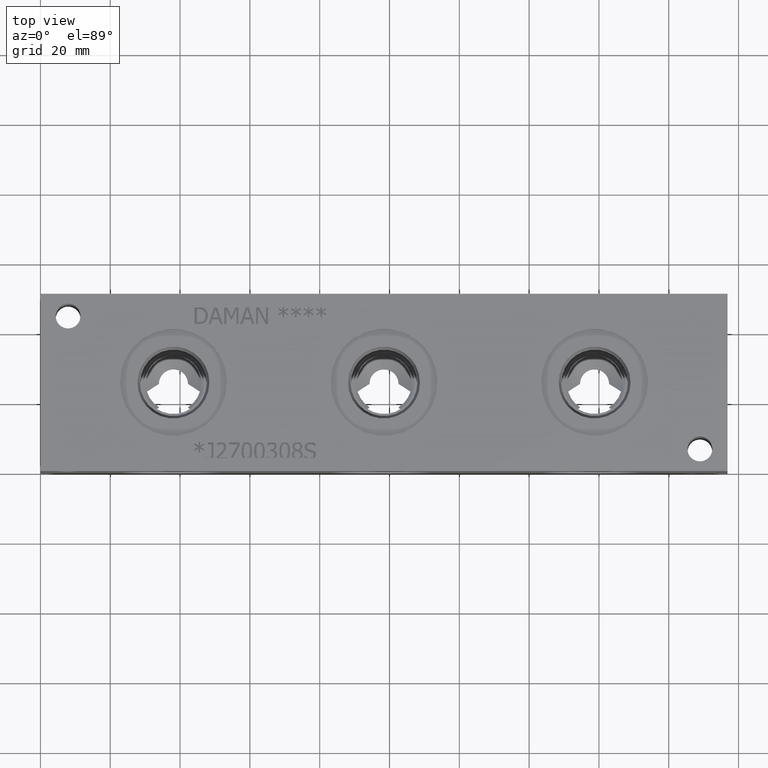
[diagram: clean part render]
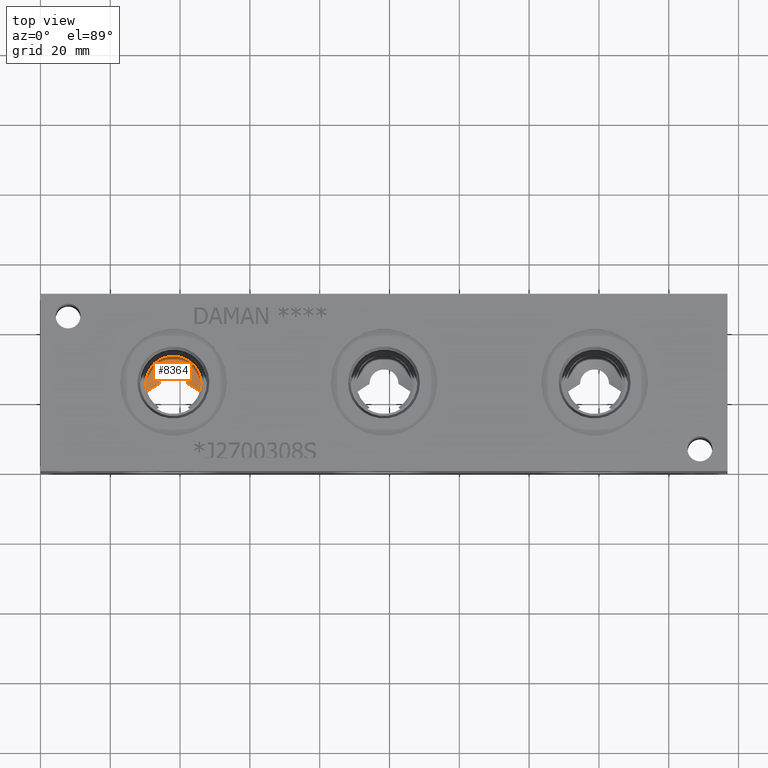
[diagram: same view with one face highlighted and labeled with its STEP entity id]
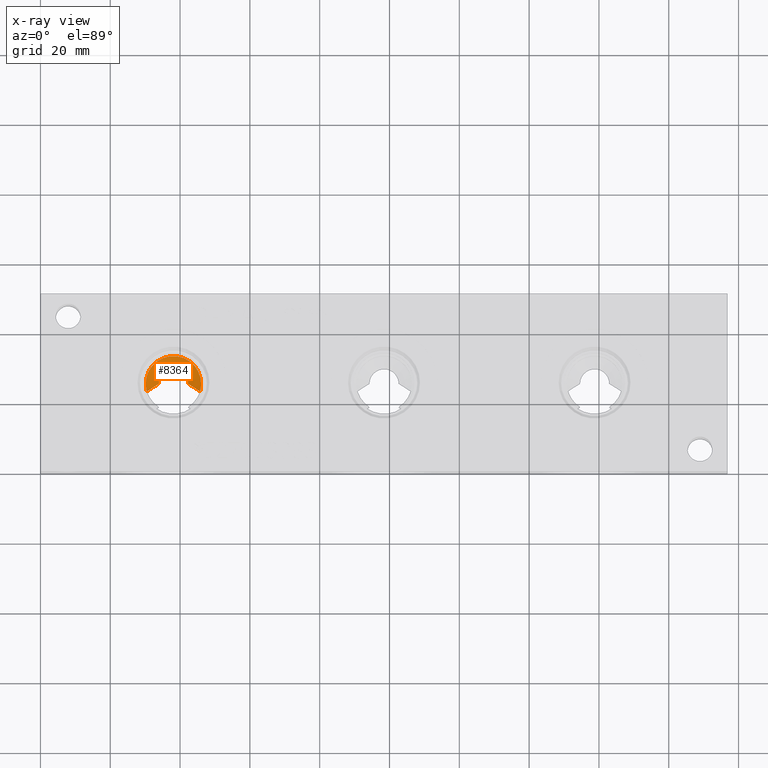
[diagram: x-ray of the same camera — body ghosted, the highlighted face saturated]
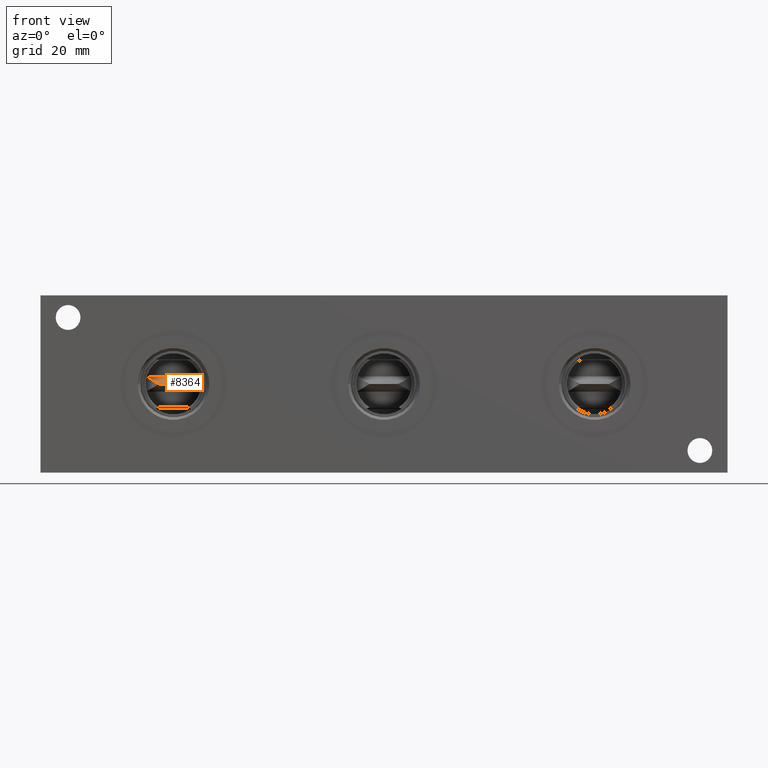
[diagram: same view with one face highlighted and labeled with its STEP entity id]
A machine part, top view. The second image highlights one B-rep face of the part: STEP entity #8364.
The next image is the same camera in x-ray: the body ghosted, the highlighted face saturated — about 0% of this face is hidden behind the body in this view.
A second angle (front view) of the same face is appended — the face is thin or edge-on in the first view.
In plain terms, the highlighted conical surface has half-angle 60 deg.
Its self-contained STEP definition (entity closure, byte-faithful):
#36=CONICAL_SURFACE('',#8818,3.96875,1.0471975511966);
#194=CIRCLE('',#8754,7.9375);
#228=CIRCLE('',#8819,4.17506995376659);
#985=FACE_OUTER_BOUND('',#1460,.T.);
#1460=EDGE_LOOP('',(#7227,#7228,#7229,#7230));
#3210=B_SPLINE_CURVE_WITH_KNOTS('',3,(#14212,#14213,#14214,#14215,#14216,
#14217,#14218,#14219),.UNSPECIFIED.,.F.,.F.,(4,2,2,4),(1.89902008874749,
1.93354394367855,2.25580126762498,2.34426642207806),.UNSPECIFIED.);
#3214=B_SPLINE_CURVE_WITH_KNOTS('',3,(#14252,#14253,#14254,#14255,#14256,
#14257,#14258,#14259),.UNSPECIFIED.,.F.,.F.,(4,2,2,4),(3.26066109384706,
3.26174175233821,3.55359088098323,3.70917715638312),.UNSPECIFIED.);
#3871=VERTEX_POINT('',#14196);
#3873=VERTEX_POINT('',#14203);
#3882=VERTEX_POINT('',#14246);
#3883=VERTEX_POINT('',#14251);
#4969=EDGE_CURVE('',#3871,#3873,#3210,.T.);
#4980=EDGE_CURVE('',#3883,#3882,#3214,.T.);
#4998=EDGE_CURVE('',#3882,#3871,#194,.T.);
#5060=EDGE_CURVE('',#3873,#3883,#228,.T.);
#7227=ORIENTED_EDGE('',*,*,#4980,.T.);
#7228=ORIENTED_EDGE('',*,*,#4998,.T.);
#7229=ORIENTED_EDGE('',*,*,#4969,.T.);
#7230=ORIENTED_EDGE('',*,*,#5060,.T.);
#8364=ADVANCED_FACE('',(#985),#36,.F.);
#8754=AXIS2_PLACEMENT_3D('',#14323,#10262,#10263);
#8818=AXIS2_PLACEMENT_3D('',#14483,#10398,#10399);
#8819=AXIS2_PLACEMENT_3D('',#14484,#10400,#10401);
#10262=DIRECTION('center_axis',(0.,0.,1.));
#10263=DIRECTION('ref_axis',(1.,0.,0.));
#10398=DIRECTION('center_axis',(0.,0.,1.));
#10399=DIRECTION('ref_axis',(5.0532154980743E-16,1.,0.));
#10400=DIRECTION('center_axis',(0.,0.,-1.));
#10401=DIRECTION('ref_axis',(1.,0.,0.));
#14196=CARTESIAN_POINT('',(30.4665225972569,23.2242405942269,27.5674));
#14203=CARTESIAN_POINT('',(33.9249328516484,25.39516,25.39516));
#14212=CARTESIAN_POINT('Ctrl Pts',(30.4665225972569,23.2242405942269,27.5674));
#14213=CARTESIAN_POINT('Ctrl Pts',(30.5557611204333,23.2830855246784,27.5085388101185));
#14214=CARTESIAN_POINT('Ctrl Pts',(30.6449775294493,23.3417820092724,27.4498254099847));
#14215=CARTESIAN_POINT('Ctrl Pts',(31.5667920311922,23.9467177876389,26.8447064040968));
#14216=CARTESIAN_POINT('Ctrl Pts',(32.3955217692583,24.479867433154,26.3113499557941));
#14217=CARTESIAN_POINT('Ctrl Pts',(33.4624350586719,25.124623896298,25.6660195179882));
#14218=CARTESIAN_POINT('Ctrl Pts',(33.6929446512235,25.2613113449701,25.5291879449013));
#14219=CARTESIAN_POINT('Ctrl Pts',(33.9249328516484,25.39516,25.39516));
#14246=CARTESIAN_POINT('',(45.7334774027431,23.2242405942269,27.5674));
#14251=CARTESIAN_POINT('',(42.2750671483516,25.39516,25.39516));
#14252=CARTESIAN_POINT('Ctrl Pts',(42.2750671483516,25.39516,25.39516));
#14253=CARTESIAN_POINT('Ctrl Pts',(42.2778608055646,25.3935481625881,25.3967739964633));
#14254=CARTESIAN_POINT('Ctrl Pts',(42.2806523909182,25.3919369784078,25.3983873330374));
#14255=CARTESIAN_POINT('Ctrl Pts',(43.0367922525738,24.9553794257359,25.8355265346844));
#14256=CARTESIAN_POINT('Ctrl Pts',(43.7818857639408,24.4890403954786,26.3021244424331));
#14257=CARTESIAN_POINT('Ctrl Pts',(44.9311800703287,23.7506185450304,27.0408626097891));
#14258=CARTESIAN_POINT('Ctrl Pts',(45.3317064100212,23.4891731063597,27.302394284422));
#14259=CARTESIAN_POINT('Ctrl Pts',(45.7334774027431,23.2242405942269,27.5674));
#14323=CARTESIAN_POINT('Origin',(38.1,25.4,27.5674));
#14483=CARTESIAN_POINT('Origin',(38.1,25.4,25.2760411191537));
#14484=CARTESIAN_POINT('Origin',(38.1,25.4,25.39516));